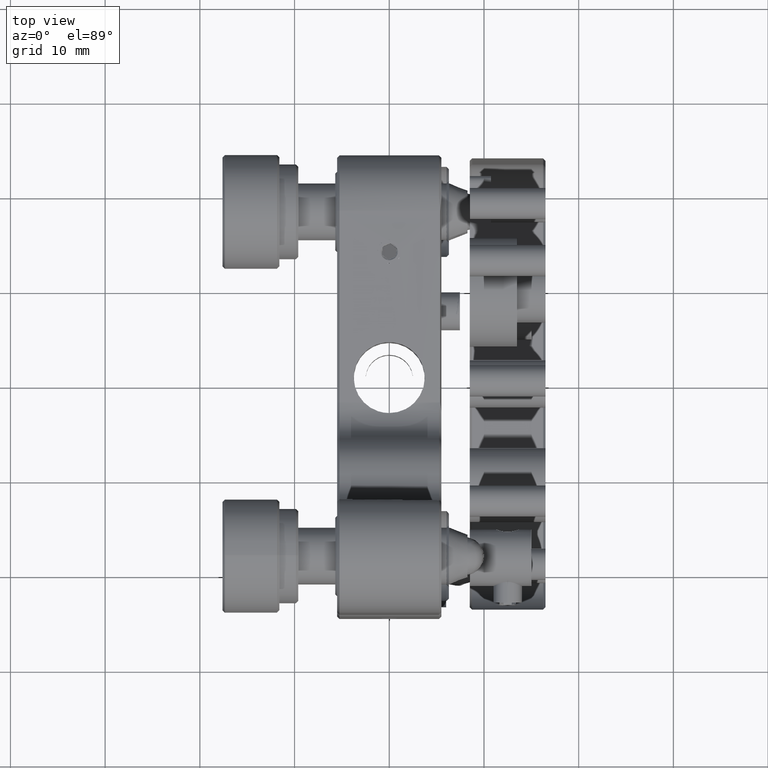
[diagram: clean part render]
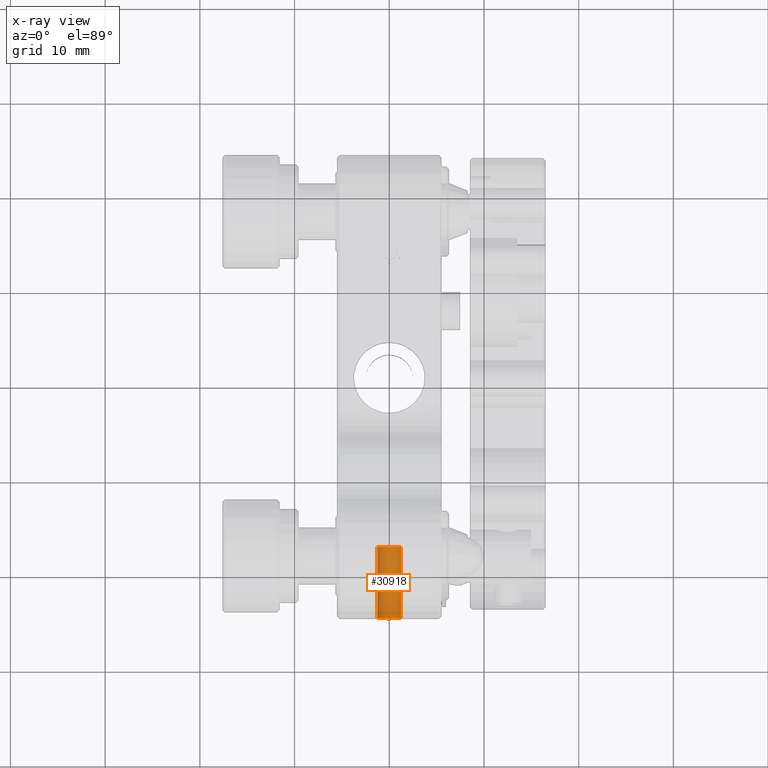
[diagram: x-ray — body ghosted, one internal face saturated and labeled with its STEP entity id]
A machine part, top view, then the same camera in x-ray: the body is ghosted and one INTERNAL B-rep face — a face not visible from any outside direction — is saturated and labeled: STEP entity #30918.
In plain terms, the highlighted cylindrical surface (bore or boss wall) has radius 1.25 mm, axis along (-0, -1, 0).
Its self-contained STEP definition (entity closure, byte-faithful):
#661 = EDGE_CURVE ( 'NONE', #23669, #23669, #13886, .T. ) ;
#738 = CARTESIAN_POINT ( 'NONE',  ( -1.054709092000906567, -17.69131364328733369, -14.27281005670759306 ) ) ;
#1435 = FACE_OUTER_BOUND ( 'NONE', #8596, .T. ) ;
#2296 = AXIS2_PLACEMENT_3D ( 'NONE', #22076, #24123, #29465 ) ;
#2943 = CARTESIAN_POINT ( 'NONE',  ( -0.7436796209983754791, -20.33954949183349825, -14.60971729332603886 ) ) ;
#5618 = CARTESIAN_POINT ( 'NONE',  ( 1.072896887852197834, -17.87441413764485176, -14.24177059806976153 ) ) ;
#5932 = CARTESIAN_POINT ( 'NONE',  ( -0.3665601083977117480, -20.70219925498706459, -14.80458477620695312 ) ) ;
#6083 = CARTESIAN_POINT ( 'NONE',  ( 1.050318252103737748, -19.33870042145795409, -14.27854316898211806 ) ) ;
#7272 = VERTEX_POINT ( 'NONE', #8445 ) ;
#7654 = CARTESIAN_POINT ( 'NONE',  ( -0.8974439771012792111, -17.00000000000000000, -14.47011166407801497 ) ) ;
#7824 = CARTESIAN_POINT ( 'NONE',  ( 1.025101848461619891, -19.51691068537559914, -14.31809345626290586 ) ) ;
#8216 = CYLINDRICAL_SURFACE ( 'NONE', #19418, 1.249999999999988898 ) ;
#8445 = CARTESIAN_POINT ( 'NONE',  ( 0.8974439771012758804, -17.00000000000000711, -14.47011166407801497 ) ) ;
#8596 = EDGE_LOOP ( 'NONE', ( #29633 ) ) ;
#8684 = DIRECTION ( 'NONE',  ( 0.000000000000000000, 0.000000000000000000, -1.000000000000000000 ) ) ;
#9819 = EDGE_LOOP ( 'NONE', ( #25238, #17649 ) ) ;
#10368 = CARTESIAN_POINT ( 'NONE',  ( -0.9965875190117905458, -17.33709151884577082, -14.35623935239194360 ) ) ;
#10521 = CARTESIAN_POINT ( 'NONE',  ( 0.8945346606201776130, -20.03276150182287196, -14.47892750247088678 ) ) ;
#10674 = CARTESIAN_POINT ( 'NONE',  ( 1.105551586423876742, -18.42363998602282038, -14.18494839071043678 ) ) ;
#11076 = DIRECTION ( 'NONE',  ( 0.000000000000000000, 0.000000000000000000, -1.000000000000000000 ) ) ;
#11874 = AXIS2_PLACEMENT_3D ( 'NONE', #15800, #16257, #11076 ) ;
#12718 = CARTESIAN_POINT ( 'NONE',  ( -1.072868553952121218, -17.87428164271051045, -14.24181675424079963 ) ) ;
#13033 = CARTESIAN_POINT ( 'NONE',  ( -1.084461001230072608, -18.97589831755598411, -14.22250577431254648 ) ) ;
#13180 = CARTESIAN_POINT ( 'NONE',  ( 1.101832825134659410, -18.79107286255101883, -14.19398777508803278 ) ) ;
#13886 = CIRCLE ( 'NONE', #11874, 1.249999999999988898 ) ;
#14769 = CARTESIAN_POINT ( 'NONE',  ( 0.8974439771012758804, -17.00000000000000711, -14.47011166407801497 ) ) ;
#15089 = CARTESIAN_POINT ( 'NONE',  ( -1.093360534264501416, -18.79055608191015025, -14.20587935920813827 ) ) ;
#15241 = CARTESIAN_POINT ( 'NONE',  ( 0.6409758250524567602, -20.48553681862862419, -14.68381330341758506 ) ) ;
#15555 = CARTESIAN_POINT ( 'NONE',  ( -0.8953642157084198416, -20.03032120276961692, -14.47801555359732006 ) ) ;
#15800 = CARTESIAN_POINT ( 'NONE',  ( -2.345346139520645558E-15, -24.50000000000001066, -13.59999999999999964 ) ) ;
#15911 = CIRCLE ( 'NONE', #2296, 1.249999999999988898 ) ;
#15950 = CARTESIAN_POINT ( 'NONE',  ( -2.345346139520645558E-15, -24.50000000000001066, -13.59999999999999964 ) ) ;
#16257 = DIRECTION ( 'NONE',  ( 1.665334536937734811E-16, 1.000000000000000000, -2.640747595863113824E-16 ) ) ;
#17454 = CARTESIAN_POINT ( 'NONE',  ( -0.9479226460496870121, -19.86157598525893775, -14.41727142113185600 ) ) ;
#17649 = ORIENTED_EDGE ( 'NONE', *, *, #22104, .T. ) ;
#17756 = CARTESIAN_POINT ( 'NONE',  ( 0.9966744688967249521, -17.33757000157724804, -14.35611834260807207 ) ) ;
#18082 = CARTESIAN_POINT ( 'NONE',  ( 0.9474688002489217720, -19.86311521150840420, -14.41779880423115578 ) ) ;
#19418 = AXIS2_PLACEMENT_3D ( 'NONE', #15950, #22736, #8684 ) ;
#19826 = CARTESIAN_POINT ( 'NONE',  ( -1.050433609520132094, -19.33732008251926615, -14.27834971381426321 ) ) ;
#19990 = CARTESIAN_POINT ( 'NONE',  ( -0.9570443457310763291, -17.16515170286503533, -14.40863910363774281 ) ) ;
#20143 = CARTESIAN_POINT ( 'NONE',  ( -0.8974439771012792111, -17.00000000000000000, -14.47011166407801497 ) ) ;
#22076 = CARTESIAN_POINT ( 'NONE',  ( -1.096345236817343464E-15, -17.00000000000000355, -13.60000000000000142 ) ) ;
#22104 = EDGE_CURVE ( 'NONE', #7272, #24220, #25773, .T. ) ;
#22191 = CARTESIAN_POINT ( 'NONE',  ( 0.7417785277076309747, -20.34266243593089740, -14.61117279902223487 ) ) ;
#22736 = DIRECTION ( 'NONE',  ( -1.665334536937734811E-16, -1.000000000000000000, 2.640747595863113824E-16 ) ) ;
#23669 = VERTEX_POINT ( 'NONE', #31214 ) ;
#24123 = DIRECTION ( 'NONE',  ( -1.665334536937734811E-16, -1.000000000000000000, 2.640747595863113824E-16 ) ) ;
#24220 = VERTEX_POINT ( 'NONE', #7654 ) ;
#24395 = CARTESIAN_POINT ( 'NONE',  ( 0.9571999969908026040, -17.16558301010671528, -14.40847856299526697 ) ) ;
#24553 = CARTESIAN_POINT ( 'NONE',  ( 0.3631967515785373690, -20.70395274983004796, -14.80564895579494156 ) ) ;
#24705 = CARTESIAN_POINT ( 'NONE',  ( -1.098364971934258305, -18.42245761841408935, -14.19675911742467633 ) ) ;
#24859 = CARTESIAN_POINT ( 'NONE',  ( -1.094605629636187683, -18.23919512365992546, -14.20399850633281247 ) ) ;
#25015 = CARTESIAN_POINT ( 'NONE',  ( 1.054683352122464113, -17.69120825944364839, -14.27284319996167206 ) ) ;
#25168 = CARTESIAN_POINT ( 'NONE',  ( -1.025481233776704970, -19.51472888764836355, -14.31755010826041463 ) ) ;
#25238 = ORIENTED_EDGE ( 'NONE', *, *, #26114, .F. ) ;
#25773 = B_SPLINE_CURVE_WITH_KNOTS ( 'NONE', 3,
 ( #14769, #24395, #17756, #25015, #5618, #10674, #13180, #6083, #7824, #18082, #10521, #22191, #15241, #24553, #29897, #27219, #5932, #29592, #2943, #15555, #17454, #25168, #19826, #13033, #15089, #24705, #24859, #12718, #738, #10368, #19990, #20143 ),
 .UNSPECIFIED., .F., .F.,
 ( 4, 2, 2, 2, 2, 2, 2, 2, 2, 2, 2, 2, 2, 2, 2, 4 ),
 ( -0.004423224482644110347, -0.003870071799175454214, -0.003316919115706798080, -0.002210613748769496654, -0.001657461065300846158, -0.001104308381832195662, -0.0005511556983635447320, 1.996985105105764102E-06, 0.0005551496685737558265, 0.001108302352042405889, 0.001661455035511055951, 0.002214607718979706014, 0.002767760402448356943, 0.003320913085917007006, 0.003874065769385657068, 0.004427218452854306263 ),
 .UNSPECIFIED. ) ;
#26114 = EDGE_CURVE ( 'NONE', #7272, #24220, #15911, .T. ) ;
#27219 = CARTESIAN_POINT ( 'NONE',  ( -0.1901165282355815889, -20.77271863805430030, -14.84969174882755993 ) ) ;
#29465 = DIRECTION ( 'NONE',  ( 0.000000000000000000, 0.000000000000000000, -1.000000000000000000 ) ) ;
#29592 = CARTESIAN_POINT ( 'NONE',  ( -0.6433647873754199109, -20.48274861046930084, -14.68234585346065479 ) ) ;
#29633 = ORIENTED_EDGE ( 'NONE', *, *, #661, .F. ) ;
#29817 = FACE_OUTER_BOUND ( 'NONE', #9819, .T. ) ;
#29897 = CARTESIAN_POINT ( 'NONE',  ( 0.1860412439739138613, -20.77370319727586079, -14.85030492958184922 ) ) ;
#30918 = ADVANCED_FACE ( 'NONE', ( #29817, #1435 ), #8216, .F. ) ;
#31214 = CARTESIAN_POINT ( 'NONE',  ( -2.345346139520645558E-15, -24.50000000000001066, -14.84999999999998899 ) ) ;